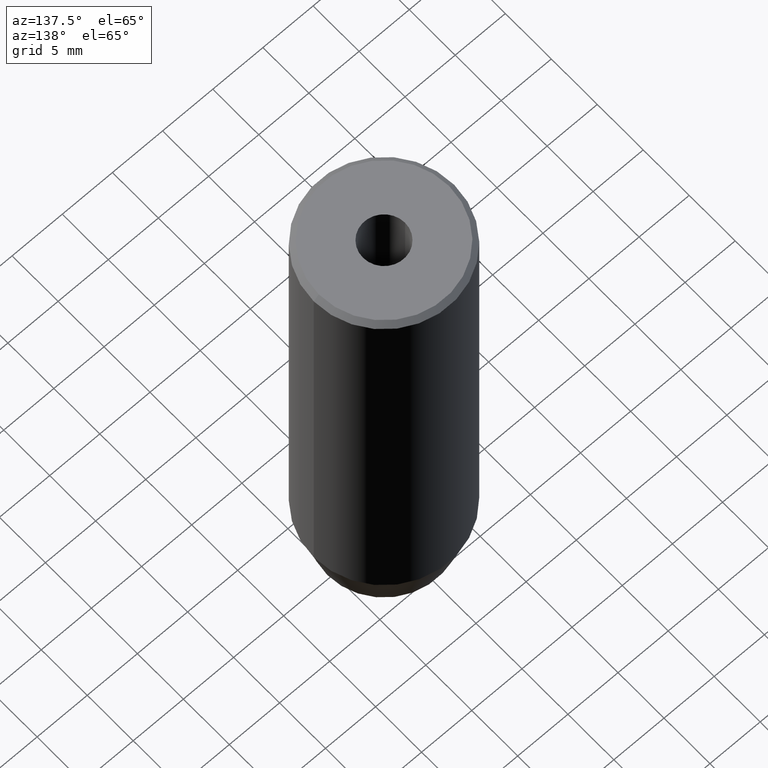
[diagram: clean part render]
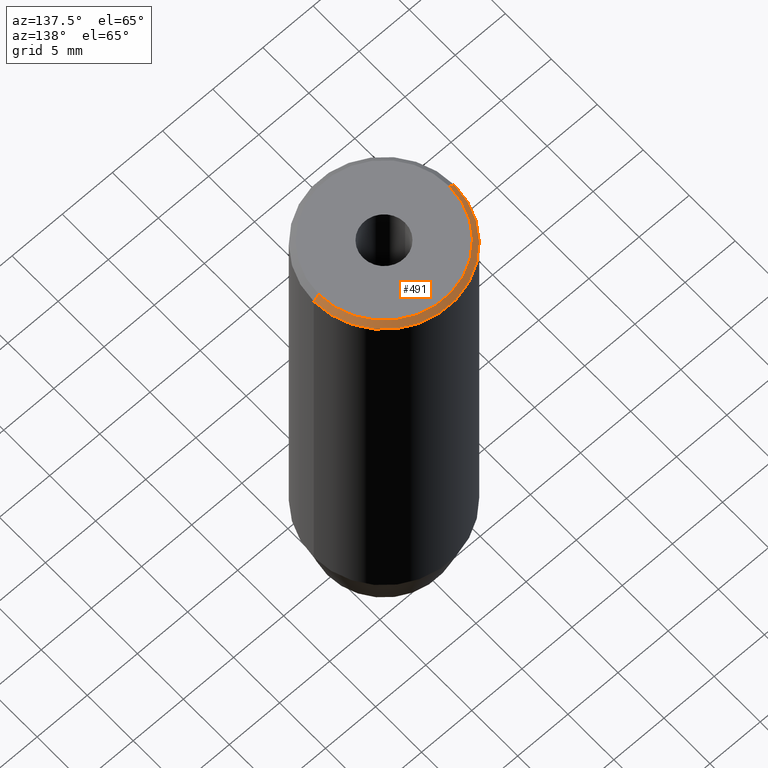
[diagram: same view with one face highlighted and labeled with its STEP entity id]
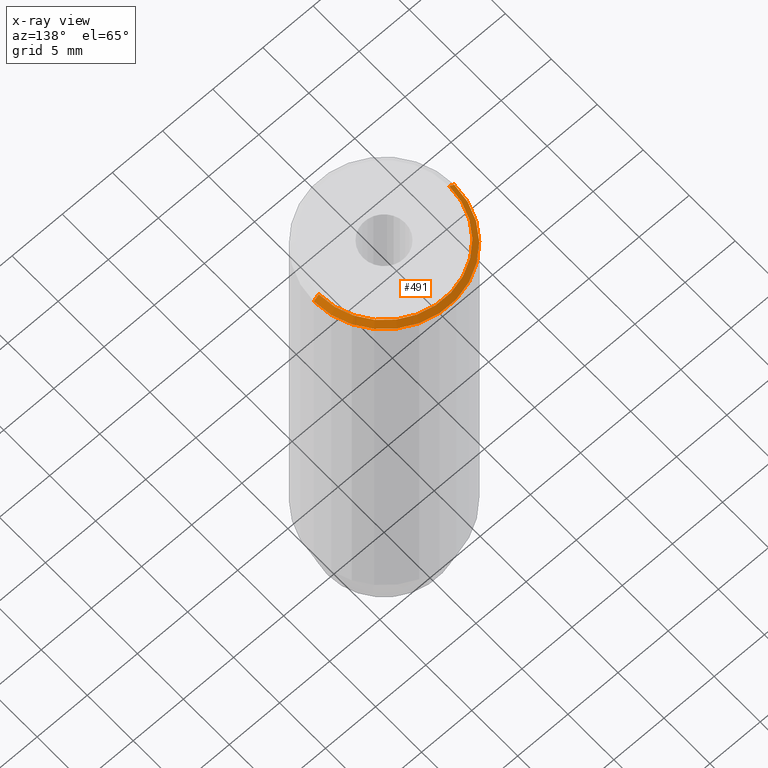
[diagram: x-ray of the same camera — body ghosted, the highlighted face saturated]
A machine part, auxiliary view. The second image highlights one B-rep face of the part: STEP entity #491.
The next image is the same camera in x-ray: the body ghosted, the highlighted face saturated — about 0% of this face is hidden behind the body in this view.
In plain terms, the highlighted conical surface has half-angle 45 deg.
Its self-contained STEP definition (entity closure, byte-faithful):
#17 = CIRCLE ( 'NONE', #240, 6.499999999999999112 ) ;
#27 = EDGE_CURVE ( 'NONE', #517, #376, #421, .T. ) ;
#66 = CARTESIAN_POINT ( 'NONE',  ( -6.499999999999999112, 0.000000000000000000, 0.000000000000000000 ) ) ;
#71 = DIRECTION ( 'NONE',  ( -0.000000000000000000, -0.000000000000000000, 1.000000000000000000 ) ) ;
#82 = DIRECTION ( 'NONE',  ( -1.000000000000000000, 0.000000000000000000, 0.000000000000000000 ) ) ;
#84 = EDGE_CURVE ( 'NONE', #267, #376, #218, .T. ) ;
#118 = CONICAL_SURFACE ( 'NONE', #458, 6.499999999999999112, 0.7853981633974447263 ) ;
#138 = EDGE_CURVE ( 'NONE', #410, #517, #150, .T. ) ;
#150 = LINE ( 'NONE', #66, #359 ) ;
#164 = CARTESIAN_POINT ( 'NONE',  ( -6.499999999999999112, 0.000000000000000000, 0.000000000000000000 ) ) ;
#182 = CARTESIAN_POINT ( 'NONE',  ( 0.000000000000000000, 0.000000000000000000, 0.000000000000000000 ) ) ;
#218 = LINE ( 'NONE', #492, #586 ) ;
#240 = AXIS2_PLACEMENT_3D ( 'NONE', #525, #71, #483 ) ;
#256 = CARTESIAN_POINT ( 'NONE',  ( 0.000000000000000000, 0.000000000000000000, -0.5000000000000048850 ) ) ;
#267 = VERTEX_POINT ( 'NONE', #533 ) ;
#305 = EDGE_LOOP ( 'NONE', ( #358, #431, #354, #399 ) ) ;
#313 = FACE_OUTER_BOUND ( 'NONE', #305, .T. ) ;
#338 = EDGE_CURVE ( 'NONE', #267, #410, #17, .T. ) ;
#349 = AXIS2_PLACEMENT_3D ( 'NONE', #256, #393, #379 ) ;
#354 = ORIENTED_EDGE ( 'NONE', *, *, #27, .F. ) ;
#358 = ORIENTED_EDGE ( 'NONE', *, *, #338, .F. ) ;
#359 = VECTOR ( 'NONE', #554, 1000.000000000000000 ) ;
#375 = CARTESIAN_POINT ( 'NONE',  ( -7.000000000000000000, 8.572527594031473190E-16, -0.5000000000000048850 ) ) ;
#376 = VERTEX_POINT ( 'NONE', #521 ) ;
#379 = DIRECTION ( 'NONE',  ( 1.000000000000000000, 0.000000000000000000, 0.000000000000000000 ) ) ;
#393 = DIRECTION ( 'NONE',  ( 0.000000000000000000, 0.000000000000000000, -1.000000000000000000 ) ) ;
#399 = ORIENTED_EDGE ( 'NONE', *, *, #138, .F. ) ;
#410 = VERTEX_POINT ( 'NONE', #164 ) ;
#421 = CIRCLE ( 'NONE', #349, 7.000000000000000000 ) ;
#431 = ORIENTED_EDGE ( 'NONE', *, *, #84, .T. ) ;
#458 = AXIS2_PLACEMENT_3D ( 'NONE', #182, #585, #82 ) ;
#483 = DIRECTION ( 'NONE',  ( 1.000000000000000000, 0.000000000000000000, 0.000000000000000000 ) ) ;
#491 = ADVANCED_FACE ( 'NONE', ( #313 ), #118, .T. ) ;
#492 = CARTESIAN_POINT ( 'NONE',  ( 6.499999999999999112, 7.960204194457794491E-16, 0.000000000000000000 ) ) ;
#517 = VERTEX_POINT ( 'NONE', #375 ) ;
#521 = CARTESIAN_POINT ( 'NONE',  ( 7.000000000000000000, 0.000000000000000000, -0.5000000000000048850 ) ) ;
#525 = CARTESIAN_POINT ( 'NONE',  ( 0.000000000000000000, 0.000000000000000000, 0.000000000000000000 ) ) ;
#533 = CARTESIAN_POINT ( 'NONE',  ( 6.499999999999999112, 8.266365894244633347E-16, 0.000000000000000000 ) ) ;
#554 = DIRECTION ( 'NONE',  ( -0.7071067811865450192, 0.000000000000000000, -0.7071067811865500152 ) ) ;
#580 = DIRECTION ( 'NONE',  ( 0.7071067811865450192, 8.659560562354902043E-17, -0.7071067811865500152 ) ) ;
#585 = DIRECTION ( 'NONE',  ( 0.000000000000000000, 0.000000000000000000, -1.000000000000000000 ) ) ;
#586 = VECTOR ( 'NONE', #580, 1000.000000000000000 ) ;